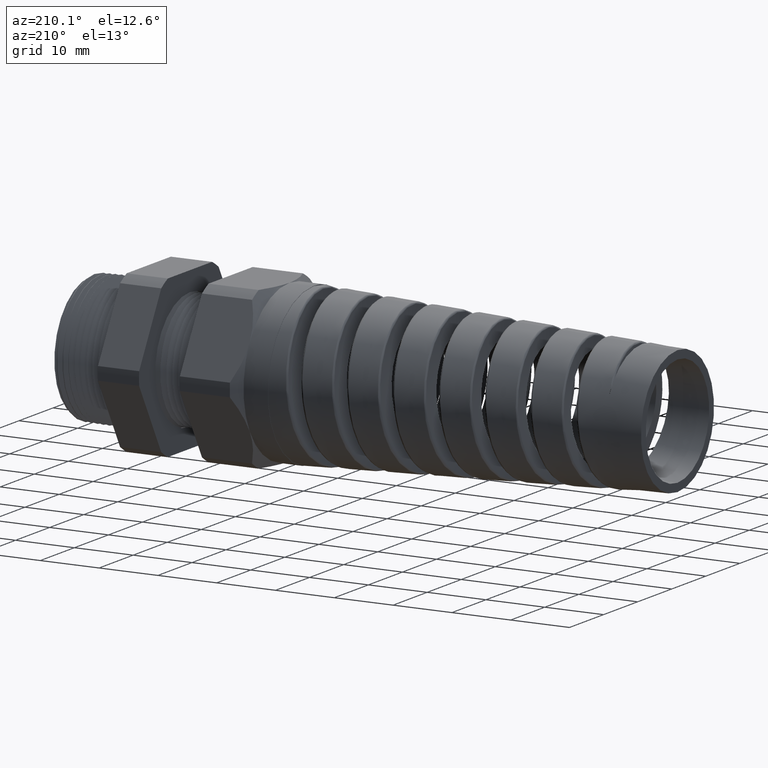
[diagram: clean part render]
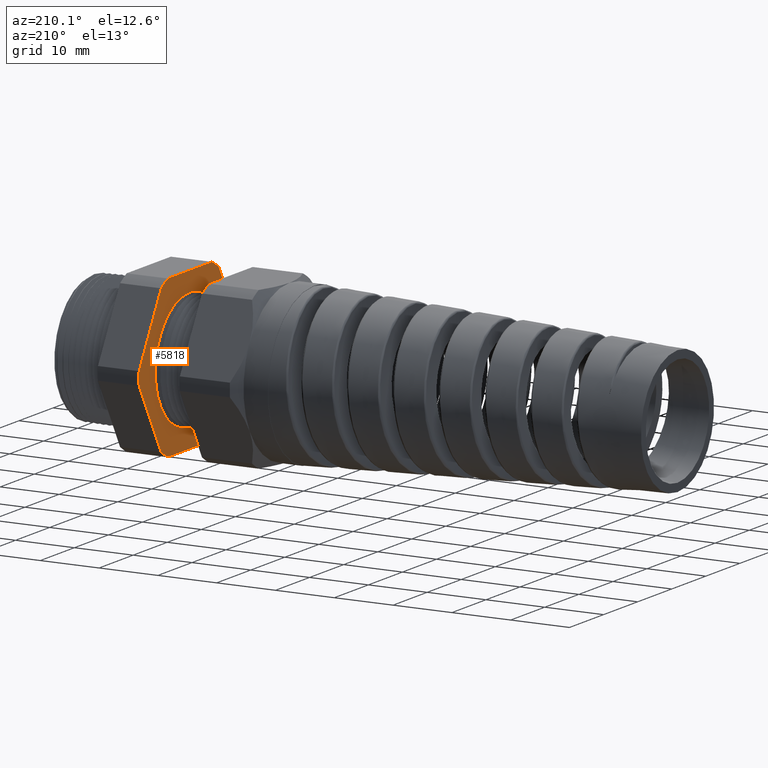
[diagram: same view with one face highlighted and labeled with its STEP entity id]
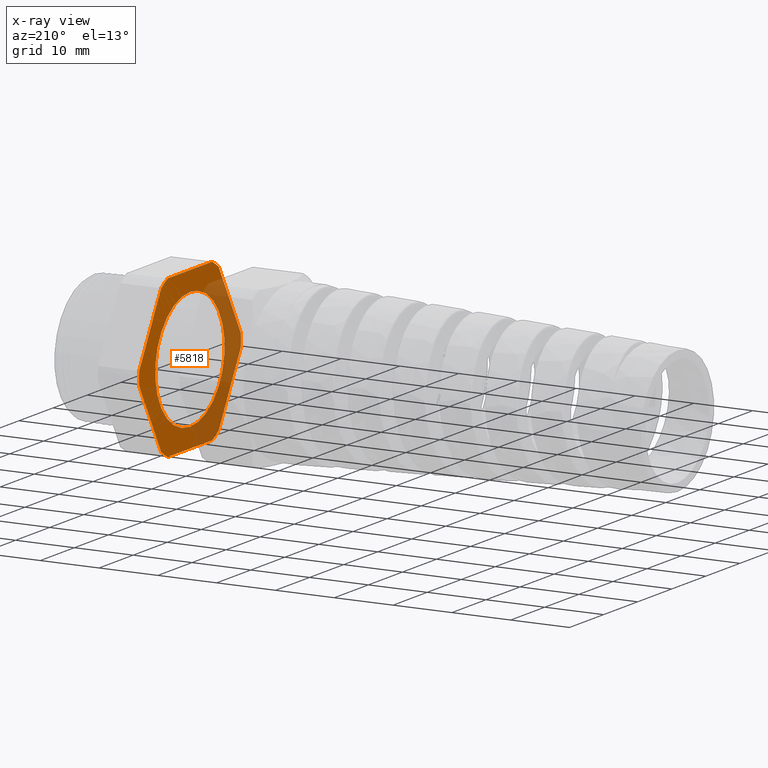
[diagram: x-ray of the same camera — body ghosted, the highlighted face saturated]
A machine part, auxiliary view. The second image highlights one B-rep face of the part: STEP entity #5818.
The next image is the same camera in x-ray: the body ghosted, the highlighted face saturated — about 39% of this face is hidden behind the body in this view.
In plain terms, the highlighted planar face has unit normal (-1, 0, 0).
Its self-contained STEP definition (entity closure, byte-faithful):
#2566 = CARTESIAN_POINT ( 'NONE',  ( -0.5855905511811022600, 0.0000000000000000000, -0.4005000000000000200 ) ) ;
#2883 = CARTESIAN_POINT ( 'NONE',  ( -0.5855905511811022600, 4.904710430585149200E-017, 0.4005000000000000200 ) ) ;
#2884 = DIRECTION ( 'NONE',  ( 0.0000000000000000000, 0.0000000000000000000, 1.000000000000000000 ) ) ;
#2885 = DIRECTION ( 'NONE',  ( -1.000000000000000000, 0.0000000000000000000, 0.0000000000000000000 ) ) ;
#2886 = CARTESIAN_POINT ( 'NONE',  ( -0.5855905511811022600, 0.0000000000000000000, 0.0000000000000000000 ) ) ;
#2887 = AXIS2_PLACEMENT_3D ( 'NONE', #2886, #2885, #2884 ) ;
#2888 = CIRCLE ( 'NONE', #2887, 0.4005000000000000200 ) ;
#5782 = EDGE_CURVE ( 'NONE', #5862, #5783, #7169, .T. ) ;
#5783 = VERTEX_POINT ( 'NONE', #7164 ) ;
#5784 = ORIENTED_EDGE ( 'NONE', *, *, #5785, .T. ) ;
#5785 = EDGE_CURVE ( 'NONE', #5783, #5786, #7163, .T. ) ;
#5786 = VERTEX_POINT ( 'NONE', #7159 ) ;
#5787 = ORIENTED_EDGE ( 'NONE', *, *, #5788, .T. ) ;
#5788 = EDGE_CURVE ( 'NONE', #5786, #5789, #7158, .T. ) ;
#5789 = VERTEX_POINT ( 'NONE', #7153 ) ;
#5790 = ORIENTED_EDGE ( 'NONE', *, *, #5791, .T. ) ;
#5791 = EDGE_CURVE ( 'NONE', #5789, #5792, #7152, .T. ) ;
#5792 = VERTEX_POINT ( 'NONE', #7148 ) ;
#5793 = ORIENTED_EDGE ( 'NONE', *, *, #5794, .F. ) ;
#5794 = EDGE_CURVE ( 'NONE', #14287, #14246, #7146, .T. ) ;
#5795 = ORIENTED_EDGE ( 'NONE', *, *, #5796, .T. ) ;
#5796 = EDGE_CURVE ( 'NONE', #5797, #5798, #7205, .T. ) ;
#5797 = VERTEX_POINT ( 'NONE', #7201 ) ;
#5798 = VERTEX_POINT ( 'NONE', #7200 ) ;
#5799 = ORIENTED_EDGE ( 'NONE', *, *, #5800, .T. ) ;
#5800 = EDGE_CURVE ( 'NONE', #5798, #5801, #7199, .T. ) ;
#5801 = VERTEX_POINT ( 'NONE', #7194 ) ;
#5802 = ORIENTED_EDGE ( 'NONE', *, *, #5803, .T. ) ;
#5803 = EDGE_CURVE ( 'NONE', #5801, #5804, #7193, .T. ) ;
#5804 = VERTEX_POINT ( 'NONE', #7189 ) ;
#5805 = ORIENTED_EDGE ( 'NONE', *, *, #5806, .T. ) ;
#5806 = EDGE_CURVE ( 'NONE', #5804, #5807, #7188, .T. ) ;
#5807 = VERTEX_POINT ( 'NONE', #7183 ) ;
#5818 = ADVANCED_FACE ( 'NONE', ( #7229, #7228 ), #7227, .T. ) ;
#5819 = EDGE_LOOP ( 'NONE', ( #5820, #5793 ) ) ;
#5820 = ORIENTED_EDGE ( 'NONE', *, *, #14286, .F. ) ;
#5821 = EDGE_LOOP ( 'NONE', ( #5795, #5799, #5802, #5805, #5860, #5863, #5784, #5787, #5790, #5846, #5849, #5852 ) ) ;
#5846 = ORIENTED_EDGE ( 'NONE', *, *, #5847, .T. ) ;
#5847 = EDGE_CURVE ( 'NONE', #5792, #5848, #7258, .T. ) ;
#5848 = VERTEX_POINT ( 'NONE', #7253 ) ;
#5849 = ORIENTED_EDGE ( 'NONE', *, *, #5850, .T. ) ;
#5850 = EDGE_CURVE ( 'NONE', #5848, #5851, #7252, .T. ) ;
#5851 = VERTEX_POINT ( 'NONE', #7248 ) ;
#5852 = ORIENTED_EDGE ( 'NONE', *, *, #5853, .T. ) ;
#5853 = EDGE_CURVE ( 'NONE', #5851, #5797, #7246, .T. ) ;
#5860 = ORIENTED_EDGE ( 'NONE', *, *, #5861, .T. ) ;
#5861 = EDGE_CURVE ( 'NONE', #5807, #5862, #7296, .T. ) ;
#5862 = VERTEX_POINT ( 'NONE', #7292 ) ;
#5863 = ORIENTED_EDGE ( 'NONE', *, *, #5782, .T. ) ;
#6568 = AXIS2_PLACEMENT_3D ( 'NONE', #6900, #6887, #6886 ) ;
#6886 = DIRECTION ( 'NONE',  ( 0.0000000000000000000, 0.0000000000000000000, 1.000000000000000000 ) ) ;
#6887 = DIRECTION ( 'NONE',  ( -1.000000000000000000, 0.0000000000000000000, 0.0000000000000000000 ) ) ;
#6900 = CARTESIAN_POINT ( 'NONE',  ( -0.5855905511811022600, 0.0000000000000000000, 0.0000000000000000000 ) ) ;
#7146 = CIRCLE ( 'NONE', #6568, 0.4005000000000000200 ) ;
#7148 = CARTESIAN_POINT ( 'NONE',  ( -0.5855905511811022600, -0.3313250556190262000, 0.4861281698472627600 ) ) ;
#7149 = DIRECTION ( 'NONE',  ( 0.0000000000000000000, 0.4999999999999998300, 0.8660254037844388200 ) ) ;
#7150 = VECTOR ( 'NONE', #7149, 39.37007874015748100 ) ;
#7151 = CARTESIAN_POINT ( 'NONE',  ( -0.5855905511811022600, -0.1939934640057527100, 0.7239934640057522600 ) ) ;
#7152 = LINE ( 'NONE', #7151, #7150 ) ;
#7153 = CARTESIAN_POINT ( 'NONE',  ( -0.5855905511811022600, -0.5866618723924791300, 0.04387183015273703200 ) ) ;
#7154 = DIRECTION ( 'NONE',  ( 0.0000000000000000000, 0.0000000000000000000, 1.000000000000000000 ) ) ;
#7155 = DIRECTION ( 'NONE',  ( -1.000000000000000000, 0.0000000000000000000, 0.0000000000000000000 ) ) ;
#7156 = CARTESIAN_POINT ( 'NONE',  ( -0.5855905511811022600, 0.0000000000000000000, 0.0000000000000000000 ) ) ;
#7157 = AXIS2_PLACEMENT_3D ( 'NONE', #7156, #7155, #7154 ) ;
#7158 = CIRCLE ( 'NONE', #7157, 0.5883000000000000500 ) ;
#7159 = CARTESIAN_POINT ( 'NONE',  ( -0.5855905511811022600, -0.5866618723924791300, -0.04387183015273717100 ) ) ;
#7160 = DIRECTION ( 'NONE',  ( 0.0000000000000000000, -0.5000000000000002200, 0.8660254037844386000 ) ) ;
#7161 = VECTOR ( 'NONE', #7160, 39.37007874015747400 ) ;
#7162 = CARTESIAN_POINT ( 'NONE',  ( -0.5855905511811022600, -0.1939934640057524300, -0.7239934640057527100 ) ) ;
#7163 = LINE ( 'NONE', #7162, #7161 ) ;
#7164 = CARTESIAN_POINT ( 'NONE',  ( -0.5855905511811022600, -0.3313250556190258700, -0.4861281698472630400 ) ) ;
#7165 = DIRECTION ( 'NONE',  ( 0.0000000000000000000, 0.0000000000000000000, 1.000000000000000000 ) ) ;
#7166 = DIRECTION ( 'NONE',  ( -1.000000000000000000, 0.0000000000000000000, 0.0000000000000000000 ) ) ;
#7167 = CARTESIAN_POINT ( 'NONE',  ( -0.5855905511811022600, 0.0000000000000000000, 0.0000000000000000000 ) ) ;
#7168 = AXIS2_PLACEMENT_3D ( 'NONE', #7167, #7166, #7165 ) ;
#7169 = CIRCLE ( 'NONE', #7168, 0.5883000000000000500 ) ;
#7183 = CARTESIAN_POINT ( 'NONE',  ( -0.5855905511811022600, 0.2553368167734529900, -0.5300000000000001400 ) ) ;
#7184 = DIRECTION ( 'NONE',  ( 0.0000000000000000000, 0.0000000000000000000, 1.000000000000000000 ) ) ;
#7185 = DIRECTION ( 'NONE',  ( -1.000000000000000000, 0.0000000000000000000, 0.0000000000000000000 ) ) ;
#7186 = CARTESIAN_POINT ( 'NONE',  ( -0.5855905511811022600, 0.0000000000000000000, 0.0000000000000000000 ) ) ;
#7187 = AXIS2_PLACEMENT_3D ( 'NONE', #7186, #7185, #7184 ) ;
#7188 = CIRCLE ( 'NONE', #7187, 0.5882999999999999300 ) ;
#7189 = CARTESIAN_POINT ( 'NONE',  ( -0.5855905511811022600, 0.3313250556190263700, -0.4861281698472627600 ) ) ;
#7190 = DIRECTION ( 'NONE',  ( 0.0000000000000000000, -0.4999999999999998300, -0.8660254037844388200 ) ) ;
#7191 = VECTOR ( 'NONE', #7190, 39.37007874015748100 ) ;
#7192 = CARTESIAN_POINT ( 'NONE',  ( -0.5855905511811022600, 0.7239934640057524900, 0.1939934640057522900 ) ) ;
#7193 = LINE ( 'NONE', #7192, #7191 ) ;
#7194 = CARTESIAN_POINT ( 'NONE',  ( -0.5855905511811022600, 0.5866618723924790200, -0.04387183015273724700 ) ) ;
#7195 = DIRECTION ( 'NONE',  ( 0.0000000000000000000, 0.0000000000000000000, 1.000000000000000000 ) ) ;
#7196 = DIRECTION ( 'NONE',  ( -1.000000000000000000, 0.0000000000000000000, 0.0000000000000000000 ) ) ;
#7197 = CARTESIAN_POINT ( 'NONE',  ( -0.5855905511811022600, 0.0000000000000000000, 0.0000000000000000000 ) ) ;
#7198 = AXIS2_PLACEMENT_3D ( 'NONE', #7197, #7196, #7195 ) ;
#7199 = CIRCLE ( 'NONE', #7198, 0.5882999999999999300 ) ;
#7200 = CARTESIAN_POINT ( 'NONE',  ( -0.5855905511811022600, 0.5866618723924790200, 0.04387183015273755900 ) ) ;
#7201 = CARTESIAN_POINT ( 'NONE',  ( -0.5855905511811022600, 0.3313250556190263700, 0.4861281698472626500 ) ) ;
#7202 = DIRECTION ( 'NONE',  ( 0.0000000000000000000, 0.4999999999999998900, -0.8660254037844386000 ) ) ;
#7203 = VECTOR ( 'NONE', #7202, 39.37007874015748100 ) ;
#7204 = CARTESIAN_POINT ( 'NONE',  ( -0.5855905511811022600, 0.7239934640057524900, -0.1939934640057523800 ) ) ;
#7205 = LINE ( 'NONE', #7204, #7203 ) ;
#7223 = DIRECTION ( 'NONE',  ( 0.0000000000000000000, 0.0000000000000000000, 1.000000000000000000 ) ) ;
#7224 = DIRECTION ( 'NONE',  ( -1.000000000000000000, 0.0000000000000000000, 0.0000000000000000000 ) ) ;
#7225 = CARTESIAN_POINT ( 'NONE',  ( -0.5855905511811022600, 1.059999999999999800, 0.0000000000000000000 ) ) ;
#7226 = AXIS2_PLACEMENT_3D ( 'NONE', #7225, #7224, #7223 ) ;
#7227 = PLANE ( 'NONE',  #7226 ) ;
#7228 = FACE_OUTER_BOUND ( 'NONE', #5821, .T. ) ;
#7229 = FACE_BOUND ( 'NONE', #5819, .T. ) ;
#7242 = DIRECTION ( 'NONE',  ( 0.0000000000000000000, 0.0000000000000000000, 1.000000000000000000 ) ) ;
#7243 = DIRECTION ( 'NONE',  ( -1.000000000000000000, 0.0000000000000000000, 0.0000000000000000000 ) ) ;
#7244 = CARTESIAN_POINT ( 'NONE',  ( -0.5855905511811022600, 0.0000000000000000000, 0.0000000000000000000 ) ) ;
#7245 = AXIS2_PLACEMENT_3D ( 'NONE', #7244, #7243, #7242 ) ;
#7246 = CIRCLE ( 'NONE', #7245, 0.5882999999999999300 ) ;
#7248 = CARTESIAN_POINT ( 'NONE',  ( -0.5855905511811022600, 0.2553368167734530500, 0.5300000000000001400 ) ) ;
#7249 = DIRECTION ( 'NONE',  ( 0.0000000000000000000, 1.000000000000000000, 0.0000000000000000000 ) ) ;
#7250 = VECTOR ( 'NONE', #7249, 39.37007874015748100 ) ;
#7251 = CARTESIAN_POINT ( 'NONE',  ( -0.5855905511811022600, 1.059999999999999800, 0.5300000000000001400 ) ) ;
#7252 = LINE ( 'NONE', #7251, #7250 ) ;
#7253 = CARTESIAN_POINT ( 'NONE',  ( -0.5855905511811022600, -0.2553368167734533200, 0.5299999999999999200 ) ) ;
#7254 = DIRECTION ( 'NONE',  ( 0.0000000000000000000, 0.0000000000000000000, 1.000000000000000000 ) ) ;
#7255 = DIRECTION ( 'NONE',  ( -1.000000000000000000, 0.0000000000000000000, 0.0000000000000000000 ) ) ;
#7256 = CARTESIAN_POINT ( 'NONE',  ( -0.5855905511811022600, 0.0000000000000000000, 0.0000000000000000000 ) ) ;
#7257 = AXIS2_PLACEMENT_3D ( 'NONE', #7256, #7255, #7254 ) ;
#7258 = CIRCLE ( 'NONE', #7257, 0.5882999999999999300 ) ;
#7292 = CARTESIAN_POINT ( 'NONE',  ( -0.5855905511811022600, -0.2553368167734529900, -0.5300000000000001400 ) ) ;
#7293 = DIRECTION ( 'NONE',  ( 0.0000000000000000000, -1.000000000000000000, 0.0000000000000000000 ) ) ;
#7294 = VECTOR ( 'NONE', #7293, 39.37007874015748100 ) ;
#7295 = CARTESIAN_POINT ( 'NONE',  ( -0.5855905511811022600, 1.059999999999999800, -0.5300000000000001400 ) ) ;
#7296 = LINE ( 'NONE', #7295, #7294 ) ;
#14246 = VERTEX_POINT ( 'NONE', #2566 ) ;
#14286 = EDGE_CURVE ( 'NONE', #14246, #14287, #2888, .T. ) ;
#14287 = VERTEX_POINT ( 'NONE', #2883 ) ;